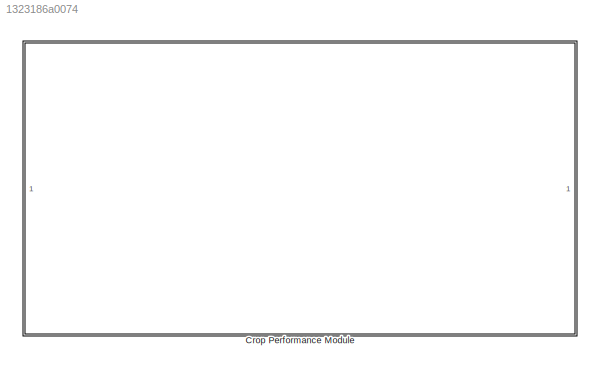
MODEL slx_1323186a0074
KIND library
CONFIG AbsTol = auto
CONFIG EnableMultiTasking = off
CONFIG FixedStep = auto
CONFIG MaxStep = auto
CONFIG MinStep = auto
CONFIG RelTol = 1e-3
CONFIG SampleTimeConstraint = Unconstrained
CONFIG SolverName = VariableStepAuto
CONFIG StartTime = 0.0
CONFIG StopTime = 10.0
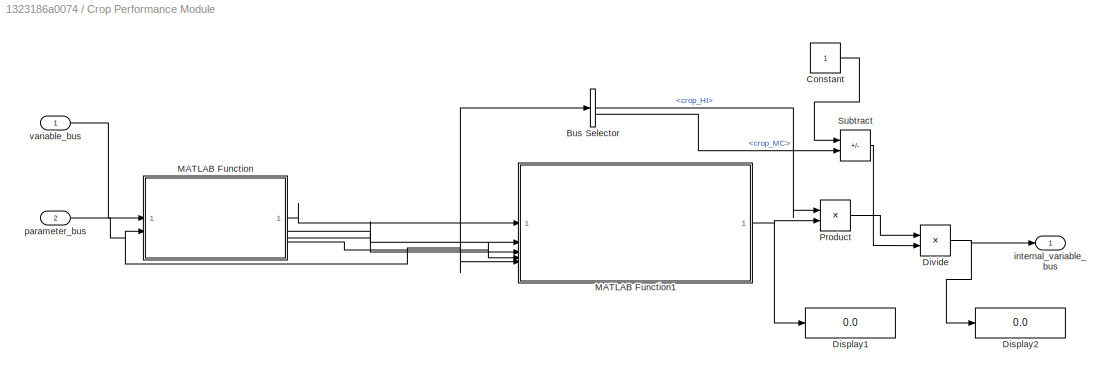
BLOCK [SubSystem] Crop Performance Module
BLOCK [BusSelector] Crop Performance Module/Bus Selector
  OutputSignals = crop_HI,crop_MC
BLOCK [Constant] Crop Performance Module/Constant
BLOCK [Display] Crop Performance Module/Display1
  Decimation = 1
BLOCK [Display] Crop Performance Module/Display2
  Decimation = 1
BLOCK [Product] Crop Performance Module/Divide
  Inputs = */
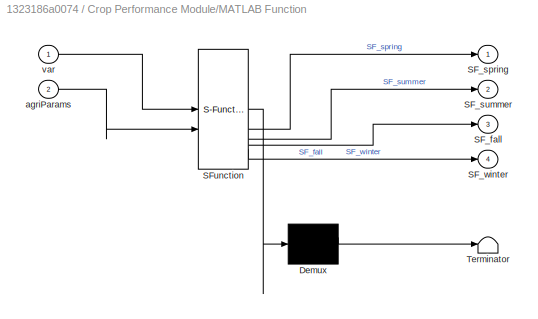
BLOCK [SubSystem] Crop Performance Module/MATLAB Function
  ErrorFcn = Stateflow.Translate.translate
  PermitHierarchicalResolution = ExplicitOnly
  SFBlockType = MATLAB Function
  TreatAsAtomicUnit = on
BLOCK [Demux] Crop Performance Module/MATLAB Function/ Demux 
  Outputs = 1
BLOCK [S-Function] Crop Performance Module/MATLAB Function/ SFunction 
  EnableBusSupport = off
  FunctionName = sf_sfun
  PortCounts = [2 5]
  SFcnIsStateOwnerBlock = off
  SFunctionDeploymentMode = off
  Tag = Stateflow S-Function 5
BLOCK [Terminator] Crop Performance Module/MATLAB Function/ Terminator 
BLOCK [Outport] Crop Performance Module/MATLAB Function/SF_fall
  Port = 3
BLOCK [Outport] Crop Performance Module/MATLAB Function/SF_spring
BLOCK [Outport] Crop Performance Module/MATLAB Function/SF_summer
  Port = 2
BLOCK [Outport] Crop Performance Module/MATLAB Function/SF_winter
  Port = 4
BLOCK [Inport] Crop Performance Module/MATLAB Function/agriParams
  Port = 2
BLOCK [Inport] Crop Performance Module/MATLAB Function/var
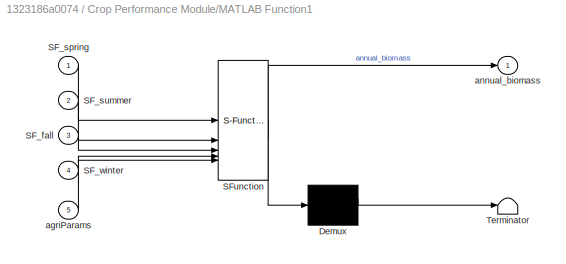
BLOCK [SubSystem] Crop Performance Module/MATLAB Function1
  ErrorFcn = Stateflow.Translate.translate
  PermitHierarchicalResolution = ExplicitOnly
  SFBlockType = MATLAB Function
  TreatAsAtomicUnit = on
BLOCK [Demux] Crop Performance Module/MATLAB Function1/ Demux 
  Outputs = 1
BLOCK [S-Function] Crop Performance Module/MATLAB Function1/ SFunction 
  EnableBusSupport = off
  FunctionName = sf_sfun
  PortCounts = [5 2]
  SFcnIsStateOwnerBlock = off
  SFunctionDeploymentMode = off
  Tag = Stateflow S-Function 6
BLOCK [Terminator] Crop Performance Module/MATLAB Function1/ Terminator 
BLOCK [Inport] Crop Performance Module/MATLAB Function1/SF_fall
  Port = 3
BLOCK [Inport] Crop Performance Module/MATLAB Function1/SF_spring
BLOCK [Inport] Crop Performance Module/MATLAB Function1/SF_summer
  Port = 2
BLOCK [Inport] Crop Performance Module/MATLAB Function1/SF_winter
  Port = 4
BLOCK [Inport] Crop Performance Module/MATLAB Function1/agriParams
  Port = 5
BLOCK [Outport] Crop Performance Module/MATLAB Function1/annual_biomass
BLOCK [Product] Crop Performance Module/Product
BLOCK [Sum] Crop Performance Module/Subtract
  IconShape = rectangular
  Inputs = +-
BLOCK [Outport] Crop Performance Module/internal_variable_bus
BLOCK [Inport] Crop Performance Module/parameter_bus
  Port = 2
BLOCK [Inport] Crop Performance Module/variable_bus
LINE Crop Performance Module/Bus Selector:1 -> Crop Performance Module/Product:1
LINE Crop Performance Module/Bus Selector:2 -> Crop Performance Module/Subtract:2
LINE Crop Performance Module/Constant:1 -> Crop Performance Module/Subtract:1
NET Crop Performance Module/Divide:1 -> Crop Performance Module/Display2:1, Crop Performance Module/internal_variable_bus:1
NET Crop Performance Module/MATLAB Function1:1 -> Crop Performance Module/Display1:1, Crop Performance Module/Product:2
LINE Crop Performance Module/MATLAB Function:1 -> Crop Performance Module/MATLAB Function1:1
LINE Crop Performance Module/MATLAB Function:2 -> Crop Performance Module/MATLAB Function1:2
LINE Crop Performance Module/MATLAB Function:3 -> Crop Performance Module/MATLAB Function1:3
LINE Crop Performance Module/MATLAB Function:4 -> Crop Performance Module/MATLAB Function1:4
LINE Crop Performance Module/Product:1 -> Crop Performance Module/Divide:1
LINE Crop Performance Module/Subtract:1 -> Crop Performance Module/Divide:2
NET Crop Performance Module/parameter_bus:1 -> Crop Performance Module/Bus Selector:1, Crop Performance Module/MATLAB Function1:5, Crop Performance Module/MATLAB Function:2
LINE Crop Performance Module/variable_bus:1 -> Crop Performance Module/MATLAB Function:1
note: NET lines group one-source signal fan-out (src -> all destinations, sorted); 1:1 wires keep LINE
CHART Crop Performance Module/MATLAB Function states=1 transitions=1
  STATE_LABEL 'eML_blk_kernel()'
  STATE_LABEL "SCRIPT:\nfunction [SF_spring, SF_summer, SF_fall, SF_winter] = shading_factor(var, agriParams)\n    coder.extrinsic('calculate_shading');\n\n    SF_spring = zeros(24, 1);\n    SF_summer = zeros(24, 1);\n    SF_fall   = zeros(24, 1);\n    SF_winter = zeros(24, 1);\n\n    [SF_spring, SF_summer, SF_fall, SF_winter] = calculate_shading(var, agriParams);\nend"
CHART Crop Performance Module/MATLAB Function1 states=1 transitions=1
  STATE_LABEL 'eML_blk_kernel()'
  STATE_LABEL "SCRIPT:\nfunction annual_biomass = crop_growth(SF_spring, SF_summer, SF_fall, SF_winter, agriParams)\n    coder.extrinsic('calculate_crop_growth');\n    \n    annual_biomass = 0;\n    % running via function in MATLAB, not simulink (so we can see changes made to funciton in github) \n    annual_biomass = calculate_crop_growth(SF_spring, SF_summer, SF_fall, SF_winter, agriParams);\n\n\nend"
CHART  states=0 transitions=0
CHART  states=0 transitions=0
